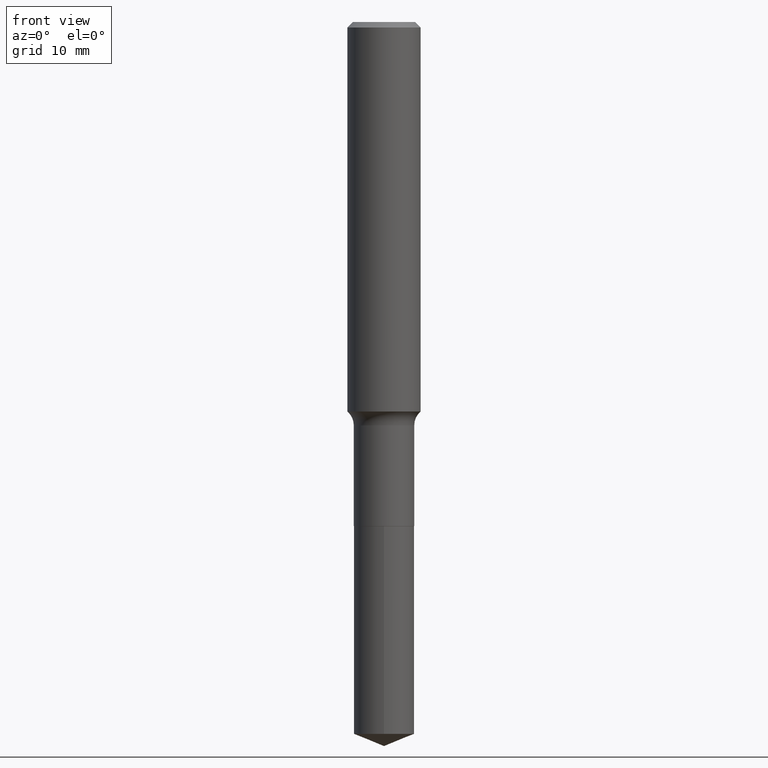
[diagram: clean part render]
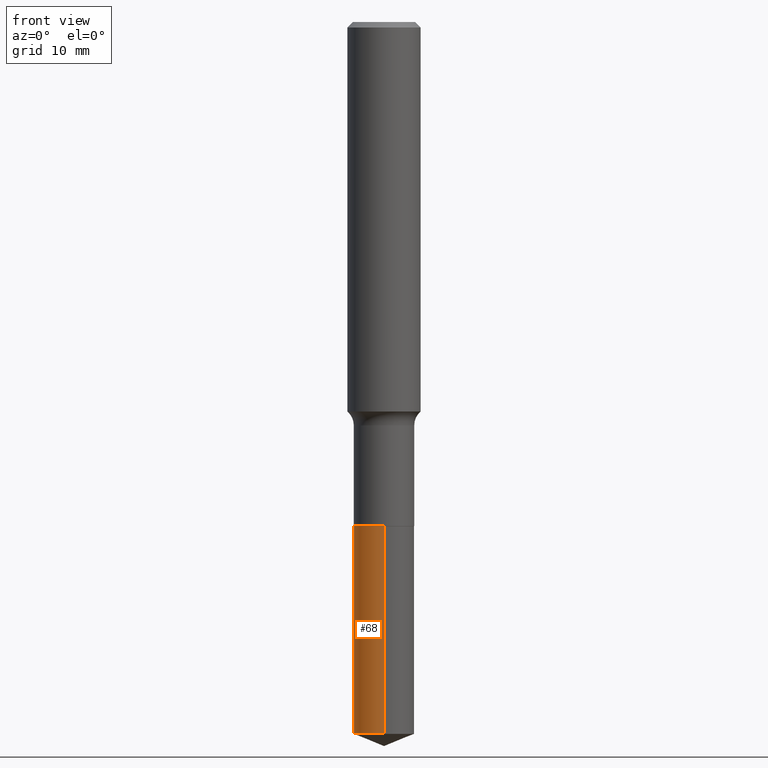
[diagram: same view with one face highlighted and labeled with its STEP entity id]
A machine part, front view. The second image highlights one B-rep face of the part: STEP entity #68.
In plain terms, the highlighted cylindrical surface (edge-blend (fillet) strip) has radius 3.2995 mm, axis along (-0, 0, 1).
Its self-contained STEP definition (entity closure, byte-faithful):
#5 = CARTESIAN_POINT ( 'NONE',  ( 9.229950137524449958E-16, 0.1298999999999893573, -3.057716993264014249 ) ) ;
#12 = EDGE_CURVE ( 'NONE', #205, #119, #395, .T. ) ;
#44 = CARTESIAN_POINT ( 'NONE',  ( 5.295173606032675561E-29, -7.560104542997063911E-15, -2.165299999999999780 ) ) ;
#51 = CIRCLE ( 'NONE', #462, 0.1298999999999999877 ) ;
#59 = DIRECTION ( 'NONE',  ( -2.445364985460457851E-29, 3.491630016029994283E-15, 1.000000000000000000 ) ) ;
#62 = EDGE_CURVE ( 'NONE', #205, #349, #139, .T. ) ;
#68 = ADVANCED_FACE ( 'NONE', ( #199 ), #153, .T. ) ;
#73 = DIRECTION ( 'NONE',  ( -2.445364985460457851E-29, 3.491630016029994283E-15, 1.000000000000000000 ) ) ;
#97 = VERTEX_POINT ( 'NONE', #231 ) ;
#107 = DIRECTION ( 'NONE',  ( -6.982962677686266711E-15, -1.000000000000000000, 4.206078512185163024E-15 ) ) ;
#117 = DIRECTION ( 'NONE',  ( -2.445364985460457851E-29, 3.491630016029994283E-15, 1.000000000000000000 ) ) ;
#119 = VERTEX_POINT ( 'NONE', #150 ) ;
#139 = CIRCLE ( 'NONE', #232, 0.1298999999999999877 ) ;
#150 = CARTESIAN_POINT ( 'NONE',  ( 9.229950137524447986E-16, 0.1298999999999924382, -2.165300000000000669 ) ) ;
#153 = CYLINDRICAL_SURFACE ( 'NONE', #310, 0.1298999999999999877 ) ;
#155 = DIRECTION ( 'NONE',  ( -6.982962677686266711E-15, -1.000000000000000000, 4.206078512185163024E-15 ) ) ;
#161 = ORIENTED_EDGE ( 'NONE', *, *, #62, .T. ) ;
#169 = EDGE_LOOP ( 'NONE', ( #241, #161, #482, #195 ) ) ;
#175 = EDGE_CURVE ( 'NONE', #119, #97, #51, .T. ) ;
#181 = CARTESIAN_POINT ( 'NONE',  ( -9.070868518313931384E-16, -0.1299000000000075650, -2.165299999999999336 ) ) ;
#195 = ORIENTED_EDGE ( 'NONE', *, *, #175, .F. ) ;
#199 = FACE_OUTER_BOUND ( 'NONE', #169, .T. ) ;
#205 = VERTEX_POINT ( 'NONE', #5 ) ;
#231 = CARTESIAN_POINT ( 'NONE',  ( -9.070868518313931384E-16, -0.1299000000000075650, -2.165299999999999336 ) ) ;
#232 = AXIS2_PLACEMENT_3D ( 'NONE', #453, #73, #155 ) ;
#241 = ORIENTED_EDGE ( 'NONE', *, *, #12, .F. ) ;
#259 = VECTOR ( 'NONE', #117, 39.37007874015748143 ) ;
#270 = DIRECTION ( 'NONE',  ( -2.445364985460457851E-29, 3.491630016029994283E-15, 1.000000000000000000 ) ) ;
#307 = DIRECTION ( 'NONE',  ( -6.982962677686266711E-15, -1.000000000000000000, 4.206078512185163024E-15 ) ) ;
#310 = AXIS2_PLACEMENT_3D ( 'NONE', #44, #270, #307 ) ;
#323 = CARTESIAN_POINT ( 'NONE',  ( -9.070868518313712475E-16, -0.1299000000000107014, -3.057716993264013361 ) ) ;
#349 = VERTEX_POINT ( 'NONE', #323 ) ;
#382 = CARTESIAN_POINT ( 'NONE',  ( 5.295173606032675561E-29, -7.560104542997063911E-15, -2.165299999999999780 ) ) ;
#391 = DIRECTION ( 'NONE',  ( -2.445364985460457851E-29, 3.491630016029994283E-15, 1.000000000000000000 ) ) ;
#395 = LINE ( 'NONE', #467, #259 ) ;
#423 = EDGE_CURVE ( 'NONE', #349, #97, #452, .T. ) ;
#452 = LINE ( 'NONE', #181, #455 ) ;
#453 = CARTESIAN_POINT ( 'NONE',  ( 7.477458873790397149E-29, -1.067609450349293200E-14, -3.057716993264013805 ) ) ;
#455 = VECTOR ( 'NONE', #59, 39.37007874015748143 ) ;
#462 = AXIS2_PLACEMENT_3D ( 'NONE', #382, #391, #107 ) ;
#467 = CARTESIAN_POINT ( 'NONE',  ( 9.229950137524229077E-16, 0.1298999999999924382, -2.165300000000000669 ) ) ;
#482 = ORIENTED_EDGE ( 'NONE', *, *, #423, .T. ) ;